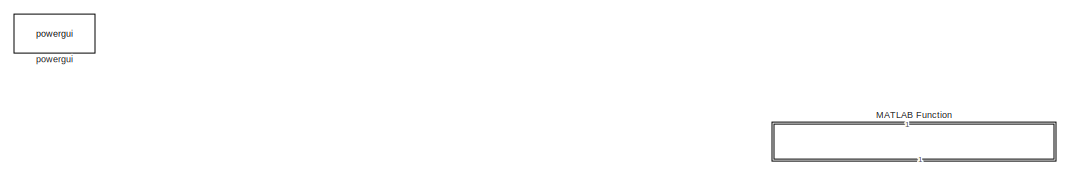
[diagram: root canvas - part 1/5, top center region]
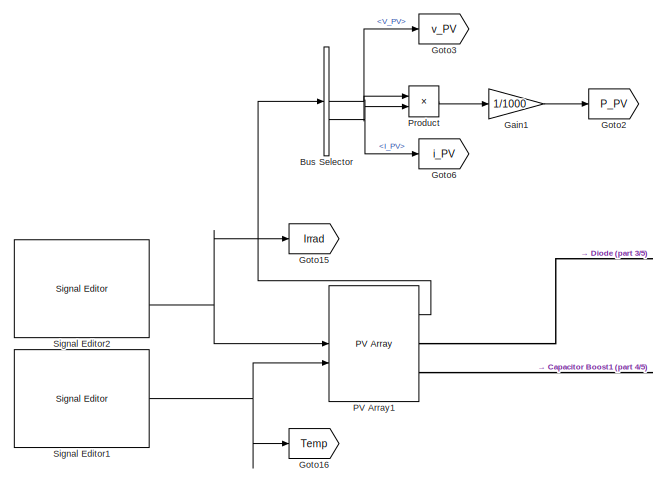
[diagram: root canvas - part 2/5, middle left region]
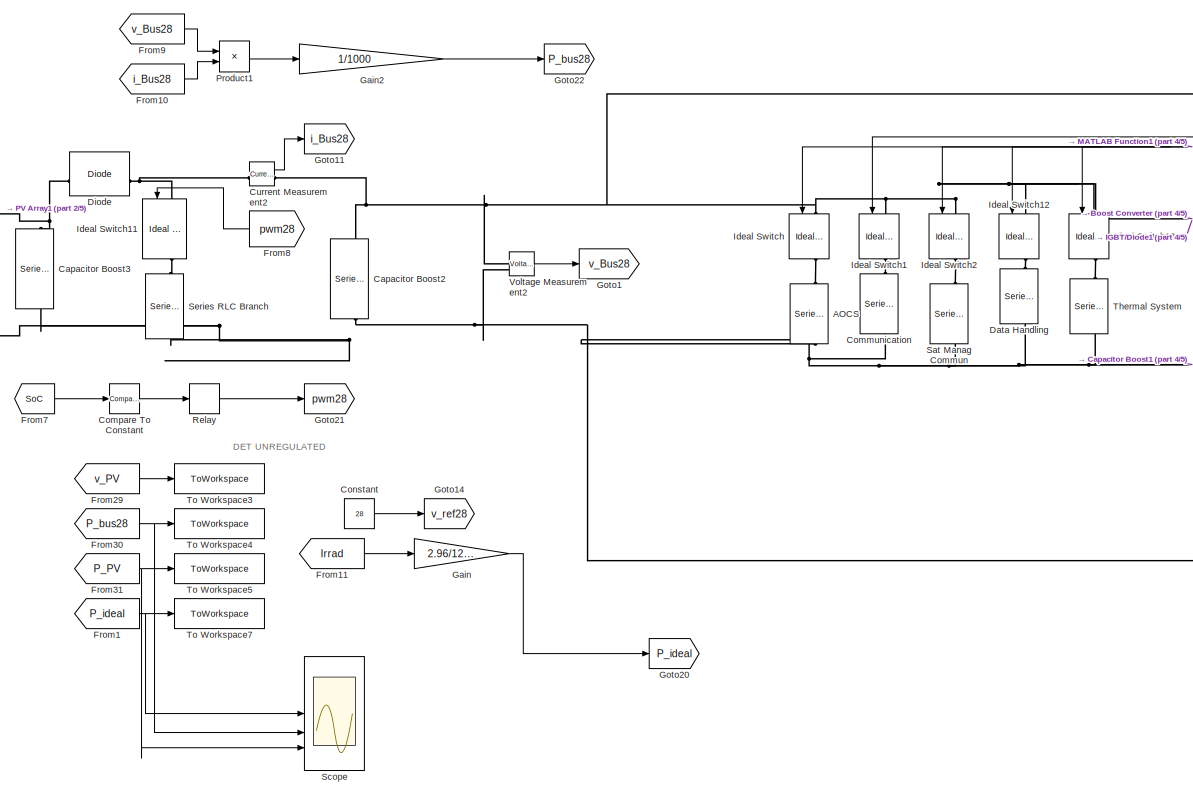
[diagram: root canvas - part 3/5, center side, full height]
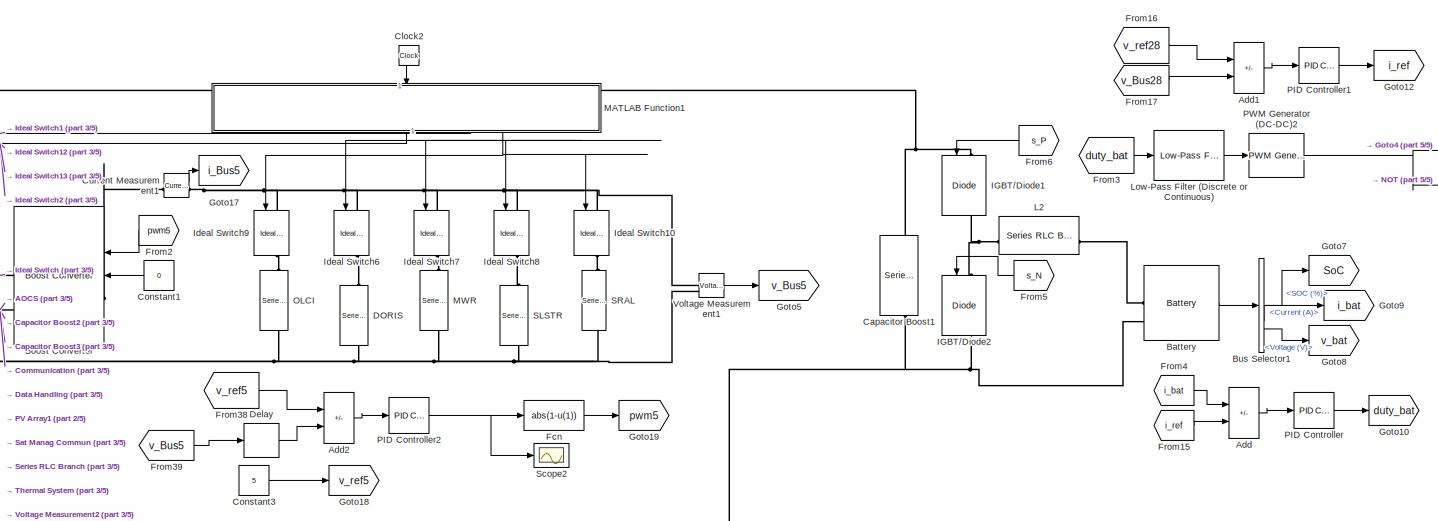
[diagram: root canvas - part 4/5, middle right region]
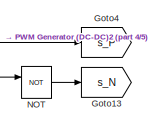
[diagram: root canvas - part 5/5, middle right region]
MODEL slx_5a19142afa1b
KIND model
CONFIG AbsTol = auto
CONFIG EnableMultiTasking = off
CONFIG FixedStep = auto
CONFIG MaxStep = auto
CONFIG MinStep = auto
CONFIG RelTol = 1e-3
CONFIG SampleTimeConstraint = Unconstrained
CONFIG SolverName = VariableStepAuto
CONFIG StartTime = 0.0
CONFIG StopTime = 6062
BLOCK [Reference] AOCS  REF=spsSeriesRLCBranchLib/Series RLC Branch
  LibrarySourceBlock = sps_lib/Passives/Series RLC Branch
  NameLocation = left
  SourceBlock = spsSeriesRLCBranchLib/Series RLC Branch
  SourceType = Series RLC Branch
BLOCK [Sum] Add
  IconShape = rectangular
  Inputs = +-
BLOCK [Sum] Add1
  IconShape = rectangular
  Inputs = +-
BLOCK [Sum] Add2
  IconShape = rectangular
  Inputs = +-
BLOCK [Reference] Battery  REF=spsBatteryLib/Battery
  LibrarySourceBlock = sps_lib/Sources/Battery
  SourceBlock = spsBatteryLib/Battery
  SourceType = Battery
BLOCK [Reference] Boost Converter  REF=spsBoostConverterLib/Boost Converter
  LibrarySourceBlock = sps_lib/Power Electronics/Boost Converter
  SourceBlock = spsBoostConverterLib/Boost Converter
  SourceType = Boost Converter
BLOCK [BusSelector] Bus Selector
  OutputSignals = V_PV,I_PV
BLOCK [BusSelector] Bus Selector1
  OutputSignals = SOC (%),Current (A),Voltage (V)
BLOCK [Reference] Capacitor Boost1  REF=spsSeriesRLCBranchLib/Series RLC Branch
  LibrarySourceBlock = sps_lib/Passives/Series RLC Branch
  SourceBlock = spsSeriesRLCBranchLib/Series RLC Branch
  SourceType = Series RLC Branch
BLOCK [Reference] Capacitor Boost2  REF=spsSeriesRLCBranchLib/Series RLC Branch
  LibrarySourceBlock = sps_lib/Passives/Series RLC Branch
  NameLocation = left
  SourceBlock = spsSeriesRLCBranchLib/Series RLC Branch
  SourceType = Series RLC Branch
BLOCK [Reference] Capacitor Boost3  REF=spsSeriesRLCBranchLib/Series RLC Branch
  LibrarySourceBlock = sps_lib/Passives/Series RLC Branch
  NameLocation = left
  SourceBlock = spsSeriesRLCBranchLib/Series RLC Branch
  SourceType = Series RLC Branch
BLOCK [Clock] Clock2
  NameLocation = left
BLOCK [Reference] Communication  REF=spsSeriesRLCBranchLib/Series RLC Branch
  LibrarySourceBlock = sps_lib/Passives/Series RLC Branch
  SourceBlock = spsSeriesRLCBranchLib/Series RLC Branch
  SourceType = Series RLC Branch
BLOCK [Reference] Compare To Constant  REF=simulink/Logic and Bit
Operations/Compare
To Constant
  SourceBlock = simulink/Logic and Bit\nOperations/Compare\nTo Constant
  SourceType = Compare To Constant
BLOCK [Constant] Constant
  Value = 28
BLOCK [Constant] Constant1
  Value = 0
BLOCK [Constant] Constant3
  Value = 5
BLOCK [Reference] Current Measurement1  REF=spsCurrentMeasurementLib/Current Measurement
  LibrarySourceBlock = sps_lib/Sensors and Measurements/Current Measurement
  SourceBlock = spsCurrentMeasurementLib/Current Measurement
  SourceType = Current Measurement
  UserDataPersistent = on
BLOCK [Reference] Current Measurement2  REF=spsCurrentMeasurementLib/Current Measurement
  LibrarySourceBlock = sps_lib/Sensors and Measurements/Current Measurement
  SourceBlock = spsCurrentMeasurementLib/Current Measurement
  SourceType = Current Measurement
  UserDataPersistent = on
BLOCK [Reference] DORIS  REF=spsSeriesRLCBranchLib/Series RLC Branch
  LibrarySourceBlock = sps_lib/Passives/Series RLC Branch
  SourceBlock = spsSeriesRLCBranchLib/Series RLC Branch
  SourceType = Series RLC Branch
BLOCK [Reference] Data Handling  REF=spsSeriesRLCBranchLib/Series RLC Branch
  LibrarySourceBlock = sps_lib/Passives/Series RLC Branch
  SourceBlock = spsSeriesRLCBranchLib/Series RLC Branch
  SourceType = Series RLC Branch
BLOCK [Delay] Delay
  DelayLength = 10
  InputPortMap = u0
BLOCK [Reference] Diode  REF=spsDiodeLib/Diode
  LibrarySourceBlock = sps_lib/Power Electronics/Diode
  SourceBlock = spsDiodeLib/Diode
  SourceType = Diode
BLOCK [Fcn] Fcn
  Expr = abs(1-u(1))
BLOCK [From] From1
  GotoTag = P_ideal
BLOCK [From] From10
  GotoTag = i_Bus28
BLOCK [From] From11
  GotoTag = Irrad
BLOCK [From] From15
  GotoTag = i_ref
BLOCK [From] From16
  GotoTag = v_ref28
BLOCK [From] From17
  GotoTag = v_Bus28
BLOCK [From] From2
  GotoTag = pwm5
BLOCK [From] From29
  GotoTag = v_PV
BLOCK [From] From3
  GotoTag = duty_bat
BLOCK [From] From30
  GotoTag = P_bus28
BLOCK [From] From31
  GotoTag = P_PV
BLOCK [From] From38
  GotoTag = v_ref5
BLOCK [From] From39
  GotoTag = v_Bus5
BLOCK [From] From4
  GotoTag = i_bat
BLOCK [From] From5
  GotoTag = s_N
BLOCK [From] From6
  GotoTag = s_P
BLOCK [From] From7
  GotoTag = SoC
BLOCK [From] From8
  GotoTag = pwm28
BLOCK [From] From9
  GotoTag = v_Bus28
BLOCK [Gain] Gain
  Gain = 2.96/1224
  OutDataTypeStr = Inherit: Same as input
BLOCK [Gain] Gain1
  Gain = 1/1000
BLOCK [Gain] Gain2
  Gain = 1/1000
BLOCK [Goto] Goto1
  GotoTag = v_Bus28
BLOCK [Goto] Goto10
  GotoTag = duty_bat
BLOCK [Goto] Goto11
  GotoTag = i_Bus28
BLOCK [Goto] Goto12
  GotoTag = i_ref
BLOCK [Goto] Goto13
  GotoTag = s_N
BLOCK [Goto] Goto14
  GotoTag = v_ref28
BLOCK [Goto] Goto15
  GotoTag = Irrad
BLOCK [Goto] Goto16
  GotoTag = Temp
BLOCK [Goto] Goto17
  GotoTag = i_Bus5
BLOCK [Goto] Goto18
  GotoTag = v_ref5
BLOCK [Goto] Goto19
  GotoTag = pwm5
BLOCK [Goto] Goto2
  GotoTag = P_PV
BLOCK [Goto] Goto20
  GotoTag = P_ideal
BLOCK [Goto] Goto21
  GotoTag = pwm28
BLOCK [Goto] Goto22
  GotoTag = P_bus28
BLOCK [Goto] Goto3
  GotoTag = v_PV
BLOCK [Goto] Goto4
  GotoTag = s_P
BLOCK [Goto] Goto5
  GotoTag = v_Bus5
BLOCK [Goto] Goto6
  GotoTag = i_PV
BLOCK [Goto] Goto7
  GotoTag = SoC
BLOCK [Goto] Goto8
  GotoTag = v_bat
BLOCK [Goto] Goto9
  GotoTag = i_bat
BLOCK [Reference] IGBT//Diode1  REF=spsIGBTDiodeLib/IGBT//Diode
  LibrarySourceBlock = sps_lib/Power Electronics/IGBT//Diode
  NameLocation = left
  SourceBlock = spsIGBTDiodeLib/IGBT//Diode
  SourceType = IGBT/Diode
BLOCK [Reference] IGBT//Diode2  REF=spsIGBTDiodeLib/IGBT//Diode
  LibrarySourceBlock = sps_lib/Power Electronics/IGBT//Diode
  NameLocation = left
  SourceBlock = spsIGBTDiodeLib/IGBT//Diode
  SourceType = IGBT/Diode
BLOCK [Reference] Ideal Switch  REF=spsIdealSwitchLib/Ideal Switch
  LibrarySourceBlock = sps_lib/Power Electronics/Ideal Switch
  NameLocation = left
  SourceBlock = spsIdealSwitchLib/Ideal Switch
  SourceType = Ideal Switch
BLOCK [Reference] Ideal Switch1  REF=spsIdealSwitchLib/Ideal Switch
  LibrarySourceBlock = sps_lib/Power Electronics/Ideal Switch
  NameLocation = left
  SourceBlock = spsIdealSwitchLib/Ideal Switch
  SourceType = Ideal Switch
BLOCK [Reference] Ideal Switch10  REF=spsIdealSwitchLib/Ideal Switch
  LibrarySourceBlock = sps_lib/Power Electronics/Ideal Switch
  NameLocation = left
  SourceBlock = spsIdealSwitchLib/Ideal Switch
  SourceType = Ideal Switch
BLOCK [Reference] Ideal Switch11  REF=spsIdealSwitchLib/Ideal Switch
  LibrarySourceBlock = sps_lib/Power Electronics/Ideal Switch
  NameLocation = left
  SourceBlock = spsIdealSwitchLib/Ideal Switch
  SourceType = Ideal Switch
BLOCK [Reference] Ideal Switch12  REF=spsIdealSwitchLib/Ideal Switch
  LibrarySourceBlock = sps_lib/Power Electronics/Ideal Switch
  NameLocation = left
  SourceBlock = spsIdealSwitchLib/Ideal Switch
  SourceType = Ideal Switch
BLOCK [Reference] Ideal Switch13  REF=spsIdealSwitchLib/Ideal Switch
  LibrarySourceBlock = sps_lib/Power Electronics/Ideal Switch
  NameLocation = left
  SourceBlock = spsIdealSwitchLib/Ideal Switch
  SourceType = Ideal Switch
BLOCK [Reference] Ideal Switch2  REF=spsIdealSwitchLib/Ideal Switch
  LibrarySourceBlock = sps_lib/Power Electronics/Ideal Switch
  NameLocation = left
  SourceBlock = spsIdealSwitchLib/Ideal Switch
  SourceType = Ideal Switch
BLOCK [Reference] Ideal Switch6  REF=spsIdealSwitchLib/Ideal Switch
  LibrarySourceBlock = sps_lib/Power Electronics/Ideal Switch
  NameLocation = left
  SourceBlock = spsIdealSwitchLib/Ideal Switch
  SourceType = Ideal Switch
BLOCK [Reference] Ideal Switch7  REF=spsIdealSwitchLib/Ideal Switch
  LibrarySourceBlock = sps_lib/Power Electronics/Ideal Switch
  NameLocation = left
  SourceBlock = spsIdealSwitchLib/Ideal Switch
  SourceType = Ideal Switch
BLOCK [Reference] Ideal Switch8  REF=spsIdealSwitchLib/Ideal Switch
  LibrarySourceBlock = sps_lib/Power Electronics/Ideal Switch
  NameLocation = left
  SourceBlock = spsIdealSwitchLib/Ideal Switch
  SourceType = Ideal Switch
BLOCK [Reference] Ideal Switch9  REF=spsIdealSwitchLib/Ideal Switch
  LibrarySourceBlock = sps_lib/Power Electronics/Ideal Switch
  NameLocation = left
  SourceBlock = spsIdealSwitchLib/Ideal Switch
  SourceType = Ideal Switch
BLOCK [Reference] L2  REF=spsSeriesRLCBranchLib/Series RLC Branch
  LibrarySourceBlock = sps_lib/Passives/Series RLC Branch
  SourceBlock = spsSeriesRLCBranchLib/Series RLC Branch
  SourceType = Series RLC Branch
BLOCK [Reference] Low-Pass Filter (Discrete or Continuous)  REF=eeGeneralControl/Low-Pass Filter
(Discrete or Continuous)
  LibrarySourceBlock = ee_sl_lib/General Control/Low-Pass Filter\n(Discrete or Continuous)
  SourceBlock = eeGeneralControl/Low-Pass Filter\n(Discrete or Continuous)
  SourceType = Low-Pass Filter (Discrete or Continuous)
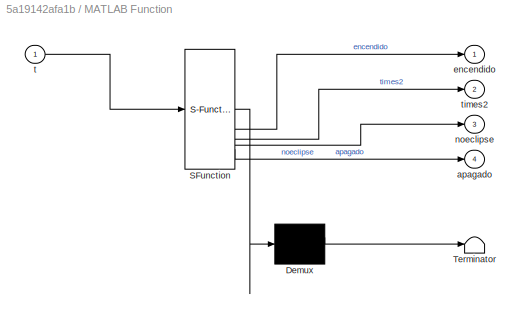
BLOCK [SubSystem] MATLAB Function
  ErrorFcn = Stateflow.Translate.translate
  LibrarySourceBlock = simulink/User-Defined\nFunctions/MATLAB Function
  NameLocation = left
  PermitHierarchicalResolution = ExplicitOnly
  SFBlockType = MATLAB Function
  TreatAsAtomicUnit = on
BLOCK [Demux] MATLAB Function/ Demux 
  Outputs = 1
BLOCK [S-Function] MATLAB Function/ SFunction 
  EnableBusSupport = on
  FunctionName = sf_sfun
  PortCounts = [1 5]
  SFcnIsStateOwnerBlock = off
  SFunctionDeploymentMode = off
  Tag = Stateflow S-Function 1
BLOCK [Terminator] MATLAB Function/ Terminator 
BLOCK [Outport] MATLAB Function/apagado
  Port = 4
BLOCK [Outport] MATLAB Function/encendido
BLOCK [Outport] MATLAB Function/noeclipse
  Port = 3
BLOCK [Inport] MATLAB Function/t
BLOCK [Outport] MATLAB Function/times2
  Port = 2
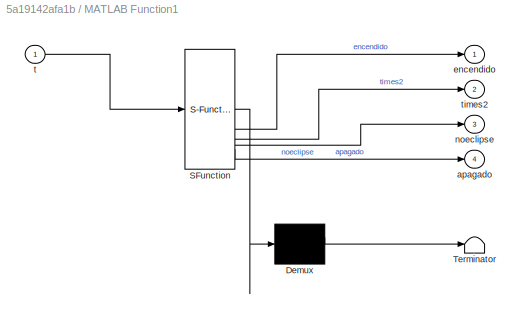
BLOCK [SubSystem] MATLAB Function1
  ErrorFcn = Stateflow.Translate.translate
  LibrarySourceBlock = simulink/User-Defined\nFunctions/MATLAB Function
  NameLocation = left
  PermitHierarchicalResolution = ExplicitOnly
  SFBlockType = MATLAB Function
  TreatAsAtomicUnit = on
BLOCK [Demux] MATLAB Function1/ Demux 
  Outputs = 1
BLOCK [S-Function] MATLAB Function1/ SFunction 
  EnableBusSupport = on
  FunctionName = sf_sfun
  PortCounts = [1 5]
  SFcnIsStateOwnerBlock = off
  SFunctionDeploymentMode = off
  Tag = Stateflow S-Function 2
BLOCK [Terminator] MATLAB Function1/ Terminator 
BLOCK [Outport] MATLAB Function1/apagado
  Port = 4
BLOCK [Outport] MATLAB Function1/encendido
BLOCK [Outport] MATLAB Function1/noeclipse
  Port = 3
BLOCK [Inport] MATLAB Function1/t
BLOCK [Outport] MATLAB Function1/times2
  Port = 2
BLOCK [Reference] MWR  REF=spsSeriesRLCBranchLib/Series RLC Branch
  LibrarySourceBlock = sps_lib/Passives/Series RLC Branch
  SourceBlock = spsSeriesRLCBranchLib/Series RLC Branch
  SourceType = Series RLC Branch
BLOCK [Logic] NOT
  AllPortsSameDT = off
  Operator = NOT
  OutDataTypeStr = boolean
BLOCK [Reference] OLCI  REF=spsSeriesRLCBranchLib/Series RLC Branch
  LibrarySourceBlock = sps_lib/Passives/Series RLC Branch
  SourceBlock = spsSeriesRLCBranchLib/Series RLC Branch
  SourceType = Series RLC Branch
BLOCK [Reference] PID Controller  REF=slpidlib/PID Controller
  LibrarySourceBlock = simulink/Continuous/PID Controller
  SourceBlock = slpidlib/PID Controller
  SourceType = PID 1dof
BLOCK [Reference] PID Controller1  REF=slpidlib/PID Controller
  LibrarySourceBlock = simulink/Continuous/PID Controller
  SourceBlock = slpidlib/PID Controller
  SourceType = PID 1dof
BLOCK [Reference] PID Controller2  REF=slpidlib/PID Controller
  LibrarySourceBlock = simulink/Continuous/PID Controller
  SourceBlock = slpidlib/PID Controller
  SourceType = PID 1dof
BLOCK [Reference] PV Array1  REF=spsPVArrayLib/PV Array
  LibrarySourceBlock = sps_lib/Sources/PV Array
  SourceBlock = spsPVArrayLib/PV Array
  SourceType = PV array
BLOCK [Reference] PWM Generator (DC-DC)2  REF=spsPWMGeneratorDCDCLib/PWM Generator
(DC-DC)
  LibrarySourceBlock = sps_lib/Power Electronics/Power Electronics Control/PWM Generator\n(DC-DC)
  SourceBlock = spsPWMGeneratorDCDCLib/PWM Generator\n(DC-DC)
  SourceType = PWM Generator (DC-DC)
BLOCK [Product] Product
BLOCK [Product] Product1
BLOCK [Relay] Relay
BLOCK [Reference] SLSTR  REF=spsSeriesRLCBranchLib/Series RLC Branch
  LibrarySourceBlock = sps_lib/Passives/Series RLC Branch
  SourceBlock = spsSeriesRLCBranchLib/Series RLC Branch
  SourceType = Series RLC Branch
BLOCK [Reference] SRAL  REF=spsSeriesRLCBranchLib/Series RLC Branch
  LibrarySourceBlock = sps_lib/Passives/Series RLC Branch
  SourceBlock = spsSeriesRLCBranchLib/Series RLC Branch
  SourceType = Series RLC Branch
BLOCK [Reference] Sat Manag Commun  REF=spsSeriesRLCBranchLib/Series RLC Branch
  LibrarySourceBlock = sps_lib/Passives/Series RLC Branch
  SourceBlock = spsSeriesRLCBranchLib/Series RLC Branch
  SourceType = Series RLC Branch
BLOCK [Scope] Scope
  Floating = off
  NumInputPorts = 4
  ScopeSpecificationString = Simulink.scopes.TimeScopeBlockCfg('CurrentConfiguration', extmgr.ConfigurationSet(extmgr.Configuration('Core','General UI',true),extmgr.Configuration('Core','Source UI',true),extmgr.Configuration('Sources','WiredSimulink',true,'DataLoggingVariableName','ScopeData1'),extmgr.Configuration('Visuals','Time Domain',true,'SerializedDisplays',{struct('MinYLimReal','-4.11537','MaxYLimReal','53.73948','YLa...<+4836ch>
BLOCK [Scope] Scope2
  Floating = off
  NumInputPorts = 1
  ScopeSpecificationString = Simulink.scopes.TimeScopeBlockCfg('CurrentConfiguration', extmgr.ConfigurationSet(extmgr.Configuration('Core','General UI',true),extmgr.Configuration('Core','Source UI',true),extmgr.Configuration('Sources','WiredSimulink',true),extmgr.Configuration('Visuals','Time Domain',true,'SerializedDisplays',{struct('MinYLimReal','0.03613','MaxYLimReal','0.17487','YLabelReal','','MinYLimMag','0.03613','MaxYL...<+1402ch>
BLOCK [Reference] Series RLC Branch  REF=spsSeriesRLCBranchLib/Series RLC Branch
  LibrarySourceBlock = sps_lib/Passives/Series RLC Branch
  NameLocation = right
  SourceBlock = spsSeriesRLCBranchLib/Series RLC Branch
  SourceType = Series RLC Branch
BLOCK [Reference] Signal Editor1  REF=SignalEditorBlockLib/Signal Editor
  LibrarySourceBlock = simulink/Sources/Signal Editor
  SourceBlock = SignalEditorBlockLib/Signal Editor
  SourceType = SignalEditor
  UserDataPersistent = on
BLOCK [Reference] Signal Editor2  REF=SignalEditorBlockLib/Signal Editor
  LibrarySourceBlock = simulink/Sources/Signal Editor
  SourceBlock = SignalEditorBlockLib/Signal Editor
  SourceType = SignalEditor
  UserDataPersistent = on
BLOCK [Reference] Thermal System  REF=spsSeriesRLCBranchLib/Series RLC Branch
  LibrarySourceBlock = sps_lib/Passives/Series RLC Branch
  SourceBlock = spsSeriesRLCBranchLib/Series RLC Branch
  SourceType = Series RLC Branch
BLOCK [ToWorkspace] To Workspace3
  Decimation = 10000
  FixptAsFi = on
  MaxDataPoints = inf
  SampleTime = -1
  SaveFormat = Structure With Time
  VariableName = v_PV
BLOCK [ToWorkspace] To Workspace4
  Decimation = 10000
  FixptAsFi = on
  MaxDataPoints = inf
  SampleTime = -1
  SaveFormat = Structure With Time
  VariableName = P_bus28
BLOCK [ToWorkspace] To Workspace5
  Decimation = 10000
  FixptAsFi = on
  MaxDataPoints = inf
  SampleTime = -1
  SaveFormat = Structure With Time
  VariableName = P_PV
BLOCK [ToWorkspace] To Workspace7
  Decimation = 10000
  FixptAsFi = on
  MaxDataPoints = inf
  SampleTime = -1
  SaveFormat = Structure With Time
  VariableName = P_ideal
BLOCK [Reference] Voltage Measurement1  REF=spsVoltageMeasurementLib/Voltage Measurement
  LibrarySourceBlock = sps_lib/Sensors and Measurements/Voltage Measurement
  SourceBlock = spsVoltageMeasurementLib/Voltage Measurement
  SourceType = Voltage Measurement
  UserDataPersistent = on
BLOCK [Reference] Voltage Measurement2  REF=spsVoltageMeasurementLib/Voltage Measurement
  LibrarySourceBlock = sps_lib/Sensors and Measurements/Voltage Measurement
  SourceBlock = spsVoltageMeasurementLib/Voltage Measurement
  SourceType = Voltage Measurement
  UserDataPersistent = on
BLOCK [Reference] powergui  REF=sps_lib/powergui
  Priority = 1
  SourceBlock = sps_lib/powergui
  SourceType = PSB option menu block
ANNOTATION (root): DET UNREGULATED
LINE Add1:1 -> PID Controller1:1
LINE Add2:1 -> PID Controller2:1
LINE Add:1 -> PID Controller:1
LINE Battery:1 -> Bus Selector1:1
LINE Bus Selector1:1 -> Goto7:1
LINE Bus Selector1:2 -> Goto9:1
LINE Bus Selector1:3 -> Goto8:1
NET Bus Selector:1 -> Goto3:1, Product:1
NET Bus Selector:2 -> Goto6:1, Product:2
LINE Clock2:1 -> MATLAB Function1:1
LINE Compare To Constant:1 -> Relay:1
LINE Constant1:1 -> Boost Converter:2
LINE Constant3:1 -> Goto18:1
LINE Constant:1 -> Goto14:1
LINE Current Measurement1:1 -> Goto17:1
LINE Current Measurement2:1 -> Goto11:1
LINE Delay:1 -> Add2:2
LINE Fcn:1 -> Goto19:1
LINE From10:1 -> Product1:2
LINE From11:1 -> Gain:1
LINE From15:1 -> Add:2
LINE From16:1 -> Add1:1
LINE From17:1 -> Add1:2
NET From1:1 -> Scope:1, To Workspace7:1
LINE From29:1 -> To Workspace3:1
LINE From2:1 -> Boost Converter:1
NET From30:1 -> Scope:2, To Workspace4:1
NET From31:1 -> Scope:4, To Workspace5:1
LINE From38:1 -> Add2:1
LINE From39:1 -> Delay:1
LINE From3:1 -> Low-Pass Filter (Discrete or Continuous):1
LINE From4:1 -> Add:1
LINE From5:1 -> IGBT//Diode2:1
LINE From6:1 -> IGBT//Diode1:1
LINE From7:1 -> Compare To Constant:1
LINE From8:1 -> Ideal Switch11:1
LINE From9:1 -> Product1:1
LINE Gain1:1 -> Goto2:1
LINE Gain2:1 -> Goto22:1
LINE Gain:1 -> Goto20:1
LINE Low-Pass Filter (Discrete or Continuous):1 -> PWM Generator (DC-DC)2:1
NET MATLAB Function1:1 -> Ideal Switch12:1, Ideal Switch13:1, Ideal Switch2:1, Ideal Switch6:1, Ideal Switch7:1, Ideal Switch8:1, Ideal Switch:1
LINE MATLAB Function1:2 -> Ideal Switch1:1
NET MATLAB Function1:3 -> Ideal Switch10:1, Ideal Switch9:1
LINE NOT:1 -> Goto13:1
LINE PID Controller1:1 -> Goto12:1
NET PID Controller2:1 -> Fcn:1, Scope2:1
LINE PID Controller:1 -> Goto10:1
LINE PV Array1:1 -> Bus Selector:1
NET PWM Generator (DC-DC)2:1 -> Goto4:1, NOT:1
LINE Product1:1 -> Gain2:1
LINE Product:1 -> Gain1:1
LINE Relay:1 -> Goto21:1
NET Signal Editor1:1 -> Goto16:1, PV Array1:2
NET Signal Editor2:2 -> Goto15:1, PV Array1:1
LINE Voltage Measurement1:1 -> Goto5:1
LINE Voltage Measurement2:1 -> Goto1:1
PLINE AOCS:LConn1 -- Ideal Switch:RConn1
PNET net1: AOCS:RConn1 -- Battery:LConn2 -- Boost Converter:RConn2 -- Capacitor Boost1:RConn1 -- Capacitor Boost2:RConn1 -- Capacitor Boost3:RConn1 -- Communication:RConn1 -- DORIS:RConn1 -- Data Handling:RConn1 -- IGBT//Diode2:RConn1 -- MWR:RConn1 -- OLCI:RConn1 -- PV Array1:RConn2 -- SLSTR:RConn1 -- SRAL:RConn1 -- Sat Manag Commun:RConn1 -- Series RLC Branch:RConn1 -- Thermal System:RConn1 -- Voltage Measurement1:LConn2 -- Voltage Measurement2:LConn2
PLINE Battery:LConn1 -- L2:RConn1
PLINE Boost Converter:LConn1 -- Current Measurement1:LConn1
PNET net2: Boost Converter:RConn1 -- Capacitor Boost1:LConn1 -- Capacitor Boost2:LConn1 -- Current Measurement2:RConn1 -- IGBT//Diode1:LConn1 -- Ideal Switch12:LConn1 -- Ideal Switch13:LConn1 -- Ideal Switch1:LConn1 -- Ideal Switch2:LConn1 -- Ideal Switch:LConn1 -- Voltage Measurement2:LConn1
PNET net3: Capacitor Boost3:LConn1 -- Diode:LConn1 -- PV Array1:RConn1
PLINE Communication:LConn1 -- Ideal Switch1:RConn1
PNET net4: Current Measurement1:RConn1 -- Ideal Switch10:LConn1 -- Ideal Switch6:LConn1 -- Ideal Switch7:LConn1 -- Ideal Switch8:LConn1 -- Ideal Switch9:LConn1 -- Voltage Measurement1:LConn1
PNET net5: Current Measurement2:LConn1 -- Diode:RConn1 -- Ideal Switch11:LConn1
PLINE DORIS:LConn1 -- Ideal Switch6:RConn1
PLINE Data Handling:LConn1 -- Ideal Switch12:RConn1
PNET net6: IGBT//Diode1:RConn1 -- IGBT//Diode2:LConn1 -- L2:LConn1
PLINE Ideal Switch10:RConn1 -- SRAL:LConn1
PLINE Ideal Switch11:RConn1 -- Series RLC Branch:LConn1
PLINE Ideal Switch13:RConn1 -- Thermal System:LConn1
PLINE Ideal Switch2:RConn1 -- Sat Manag Commun:LConn1
PLINE Ideal Switch7:RConn1 -- MWR:LConn1
PLINE Ideal Switch8:RConn1 -- SLSTR:LConn1
PLINE Ideal Switch9:RConn1 -- OLCI:LConn1
note: NET lines group one-source signal fan-out (src -> all destinations, sorted); 1:1 wires keep LINE; PNET lines group multi-terminal physical nets as a canonical sorted terminal list (undirected conserving connections); 2-terminal nets keep the pairwise PLINE form
CHART MATLAB Function states=1 transitions=1
  STATE_LABEL 'eML_blk_kernel()'
  STATE_LABEL 'SCRIPT:\nfunction [encendido, times2, noeclipse, apagado] = controlSignals(t)\n    % Inicializa las señales en 0\n    encendido = 1;\n    times2 = 0;\n    noeclipse = 1;\n    apagado = 0;\n    \n    \n    % Activa times2 entre 10 y 11 segundos\n    if (t >= 3 && t < 3.1)\n        times2 = 1;\n    end\n\n    if (t >= 9.2 && t < 9.3)\n        times2 = 1;\n    end\n    % Activa la señal3 entre 10 y 11 segundos\n    if...<+57ch>'
CHART MATLAB Function1 states=1 transitions=1
  STATE_LABEL 'eML_blk_kernel()'
  STATE_LABEL 'SCRIPT:\nfunction [encendido, times2, noeclipse, apagado] = controlSignals(t)\n    % Inicializa las señales en 0\n    encendido = 1;\n    times2 = 0;\n    noeclipse = 1;\n    apagado = 0;\n    \n    \n    % Activa times2 entre 10 y 11 segundos\n    if (t >= 300 && t < 330)\n        times2 = 1;\n    end\n\n    if (t >= 6000 && t < 6030)\n        times2 = 1;\n    end\n    % Activa la señal3 entre 10 y 11 segundos\n  ...<+63ch>'
CHART  states=0 transitions=0
CHART  states=0 transitions=0
